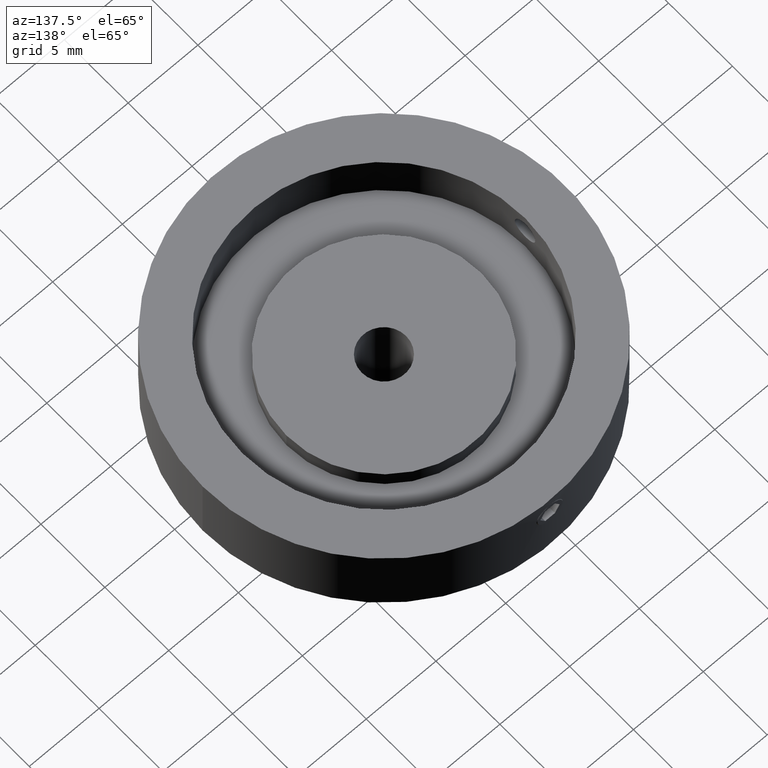
[diagram: clean part render]
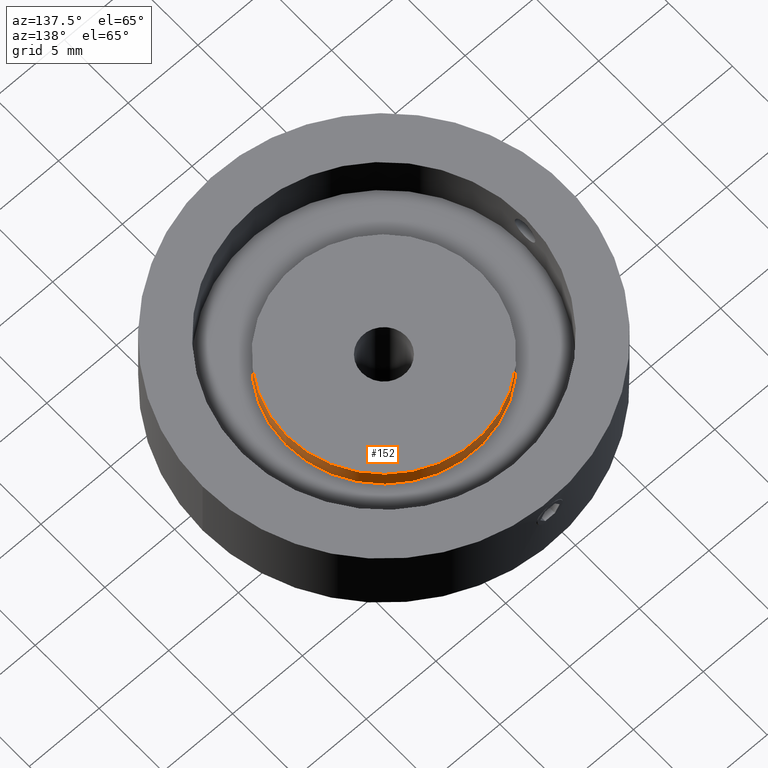
[diagram: same view with one face highlighted and labeled with its STEP entity id]
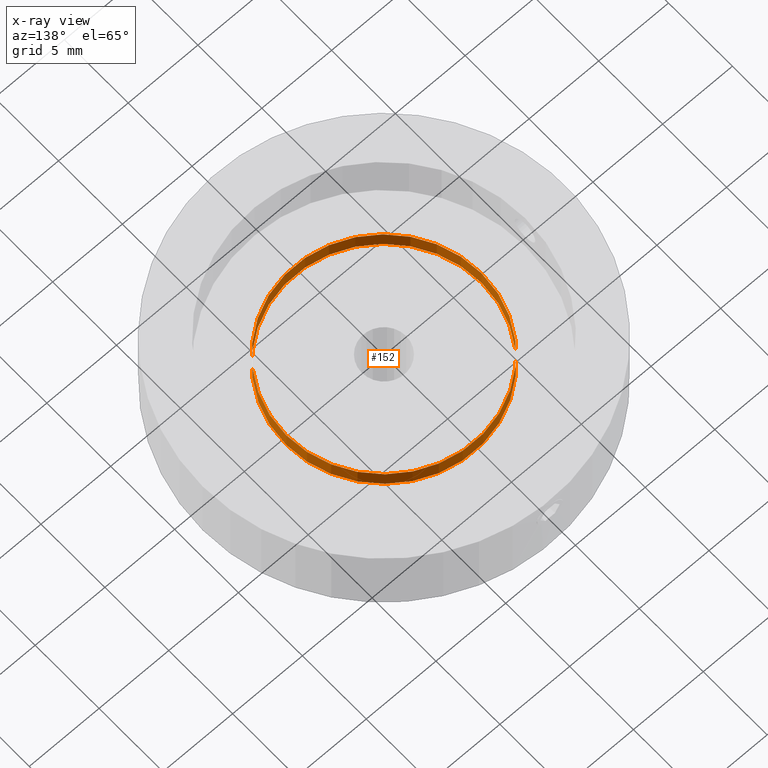
[diagram: x-ray of the same camera — body ghosted, the highlighted face saturated]
A machine part, auxiliary view. The second image highlights one B-rep face of the part: STEP entity #152.
The next image is the same camera in x-ray: the body ghosted, the highlighted face saturated — about 0% of this face is hidden behind the body in this view.
In plain terms, the highlighted cylindrical surface (bore or boss wall) has radius 7 mm, axis along (-0, -0, -1).
Its self-contained STEP definition (entity closure, byte-faithful):
#1 = ORIENTED_EDGE ( 'NONE', *, *, #335, .T. ) ;
#152 = ADVANCED_FACE ( 'NONE', ( #640, #761 ), #321, .T. ) ;
#157 = DIRECTION ( 'NONE',  ( -1.000000000000000000, 0.0000000000000000000, 0.0000000000000000000 ) ) ;
#191 = CARTESIAN_POINT ( 'NONE',  ( -1.822524619646406000, -1.515573104758408500, 29.69999999999999900 ) ) ;
#239 = CARTESIAN_POINT ( 'NONE',  ( -1.822524619646406000, -1.515573104758408500, 29.69999999999999900 ) ) ;
#321 = CYLINDRICAL_SURFACE ( 'NONE', #660, 6.999999999999999100 ) ;
#335 = EDGE_CURVE ( 'NONE', #1056, #1056, #547, .T. ) ;
#338 = AXIS2_PLACEMENT_3D ( 'NONE', #569, #1018, #906 ) ;
#392 = DIRECTION ( 'NONE',  ( 0.0000000000000000000, 0.0000000000000000000, 1.000000000000000000 ) ) ;
#434 = ORIENTED_EDGE ( 'NONE', *, *, #923, .F. ) ;
#435 = EDGE_LOOP ( 'NONE', ( #434 ) ) ;
#443 = DIRECTION ( 'NONE',  ( 1.000000000000000000, 0.0000000000000000000, 0.0000000000000000000 ) ) ;
#547 = CIRCLE ( 'NONE', #338, 7.000000000000000000 ) ;
#569 = CARTESIAN_POINT ( 'NONE',  ( -1.822524619646406000, -1.515573104758408500, 28.50000000000000000 ) ) ;
#623 = CARTESIAN_POINT ( 'NONE',  ( 5.177475380353594200, -1.515573104758408500, 28.50000000000000000 ) ) ;
#629 = CIRCLE ( 'NONE', #938, 7.000000000000000000 ) ;
#640 = FACE_OUTER_BOUND ( 'NONE', #435, .T. ) ;
#660 = AXIS2_PLACEMENT_3D ( 'NONE', #191, #979, #157 ) ;
#708 = CARTESIAN_POINT ( 'NONE',  ( 5.177475380353594200, -1.515573104758408500, 29.69999999999999900 ) ) ;
#761 = FACE_OUTER_BOUND ( 'NONE', #783, .T. ) ;
#783 = EDGE_LOOP ( 'NONE', ( #1 ) ) ;
#906 = DIRECTION ( 'NONE',  ( 1.000000000000000000, 0.0000000000000000000, 0.0000000000000000000 ) ) ;
#923 = EDGE_CURVE ( 'NONE', #955, #955, #629, .T. ) ;
#938 = AXIS2_PLACEMENT_3D ( 'NONE', #239, #392, #443 ) ;
#955 = VERTEX_POINT ( 'NONE', #708 ) ;
#979 = DIRECTION ( 'NONE',  ( -0.0000000000000000000, -0.0000000000000000000, -1.000000000000000000 ) ) ;
#1018 = DIRECTION ( 'NONE',  ( 0.0000000000000000000, 0.0000000000000000000, 1.000000000000000000 ) ) ;
#1056 = VERTEX_POINT ( 'NONE', #623 ) ;